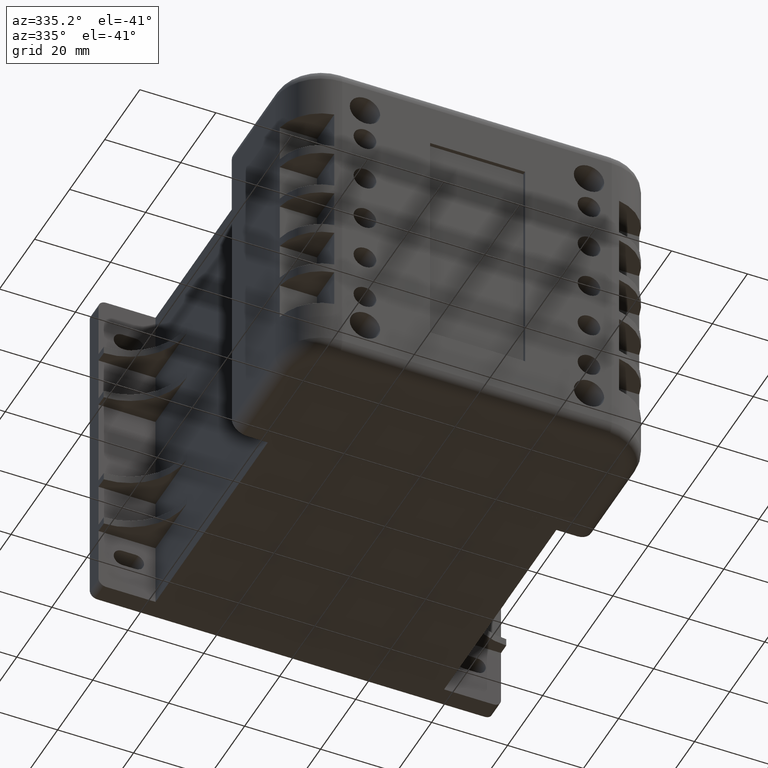
[diagram: clean part render]
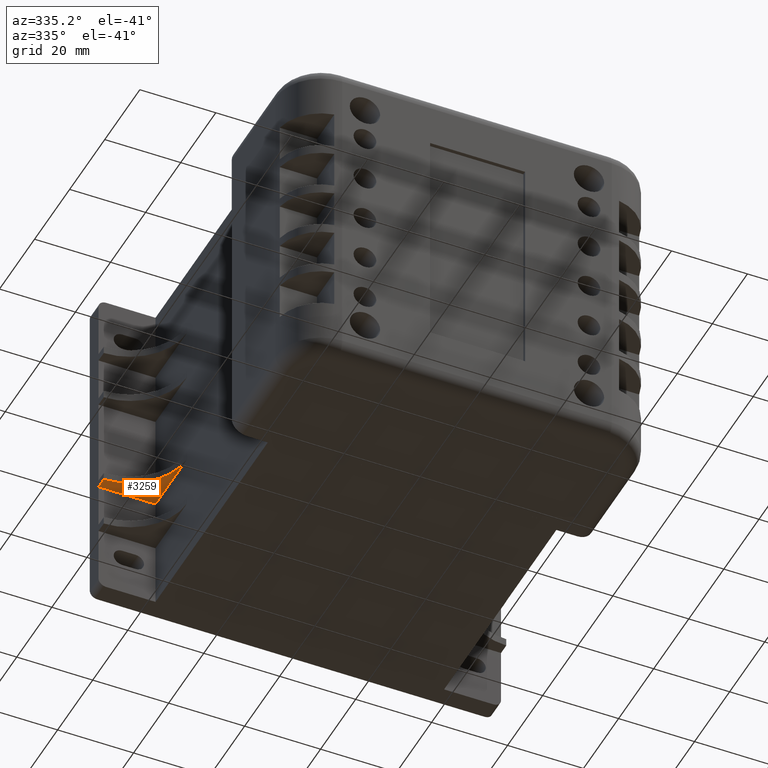
[diagram: same view with one face highlighted and labeled with its STEP entity id]
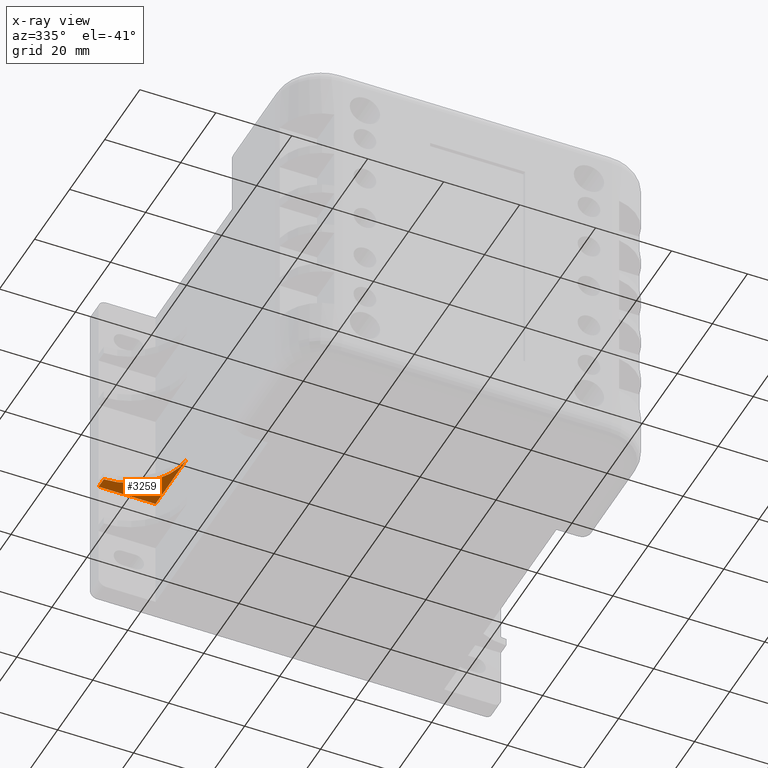
[diagram: x-ray of the same camera — body ghosted, the highlighted face saturated]
A machine part, auxiliary view. The second image highlights one B-rep face of the part: STEP entity #3259.
The next image is the same camera in x-ray: the body ghosted, the highlighted face saturated — about 0% of this face is hidden behind the body in this view.
In plain terms, the highlighted planar face has unit normal (0, 0, -1).
Its self-contained STEP definition (entity closure, byte-faithful):
#168=CIRCLE('',#3657,15.);
#390=FACE_OUTER_BOUND('',#614,.T.);
#614=EDGE_LOOP('',(#2646,#2647,#2648,#2649));
#901=LINE('',#5371,#1205);
#902=LINE('',#5373,#1206);
#903=LINE('',#5374,#1207);
#1205=VECTOR('',#4487,10.);
#1206=VECTOR('',#4488,10.);
#1207=VECTOR('',#4489,10.);
#1484=VERTEX_POINT('',#5358);
#1485=VERTEX_POINT('',#5360);
#1488=VERTEX_POINT('',#5370);
#1489=VERTEX_POINT('',#5372);
#1876=EDGE_CURVE('',#1484,#1485,#168,.T.);
#1881=EDGE_CURVE('',#1488,#1484,#901,.T.);
#1882=EDGE_CURVE('',#1489,#1488,#902,.T.);
#1883=EDGE_CURVE('',#1489,#1485,#903,.T.);
#2646=ORIENTED_EDGE('',*,*,#1876,.F.);
#2647=ORIENTED_EDGE('',*,*,#1881,.F.);
#2648=ORIENTED_EDGE('',*,*,#1882,.F.);
#2649=ORIENTED_EDGE('',*,*,#1883,.T.);
#2876=PLANE('',#3659);
#3259=ADVANCED_FACE('',(#390),#2876,.T.);
#3657=AXIS2_PLACEMENT_3D('',#5361,#4477,#4478);
#3659=AXIS2_PLACEMENT_3D('',#5369,#4485,#4486);
#4477=DIRECTION('center_axis',(-5.9211894646675E-16,-4.93432455388958E-16,
-1.));
#4478=DIRECTION('ref_axis',(0.,-1.,0.));
#4485=DIRECTION('center_axis',(-5.9211894646675E-16,-4.93432455388958E-16,
-1.));
#4486=DIRECTION('ref_axis',(-2.43475588031176E-31,1.,-4.93432455388958E-16));
#4487=DIRECTION('',(-2.43475588031176E-31,1.,-4.93432455388958E-16));
#4488=DIRECTION('',(1.,0.,-5.9211894646675E-16));
#4489=DIRECTION('',(-2.43475588031176E-31,1.,-4.93432455388958E-16));
#5358=CARTESIAN_POINT('',(-1.11022302462516E-14,8.00000000000001,31.));
#5360=CARTESIAN_POINT('',(-15.,23.,31.));
#5361=CARTESIAN_POINT('Origin',(-1.11022302462516E-14,23.,31.));
#5369=CARTESIAN_POINT('Origin',(-15.,5.,31.));
#5370=CARTESIAN_POINT('',(-1.11022302462516E-14,5.,31.));
#5371=CARTESIAN_POINT('',(-1.11022302462516E-14,5.,31.));
#5372=CARTESIAN_POINT('',(-15.,5.,31.));
#5373=CARTESIAN_POINT('',(-15.,5.,31.));
#5374=CARTESIAN_POINT('',(-15.,5.,31.));